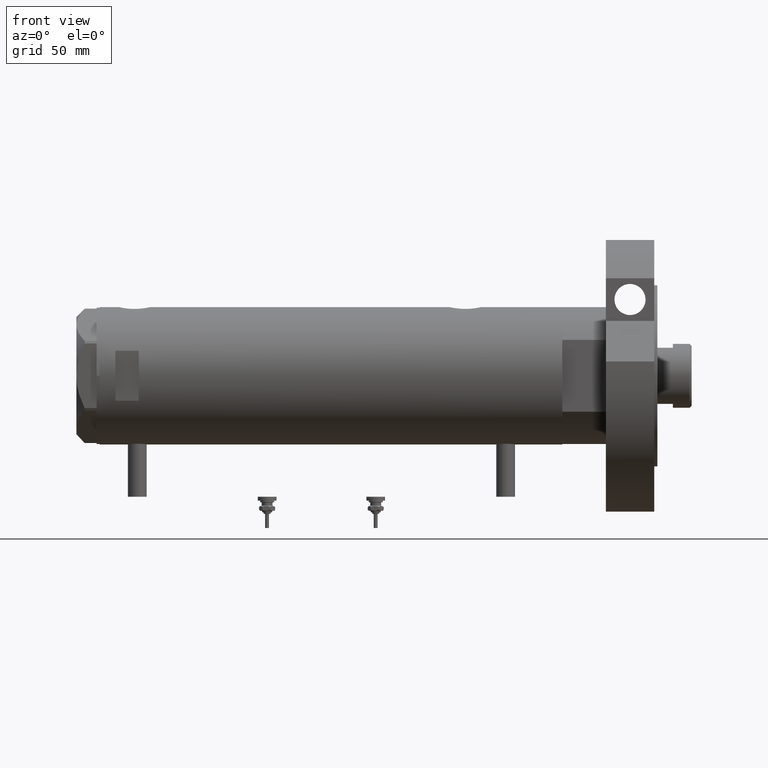
[diagram: clean part render]
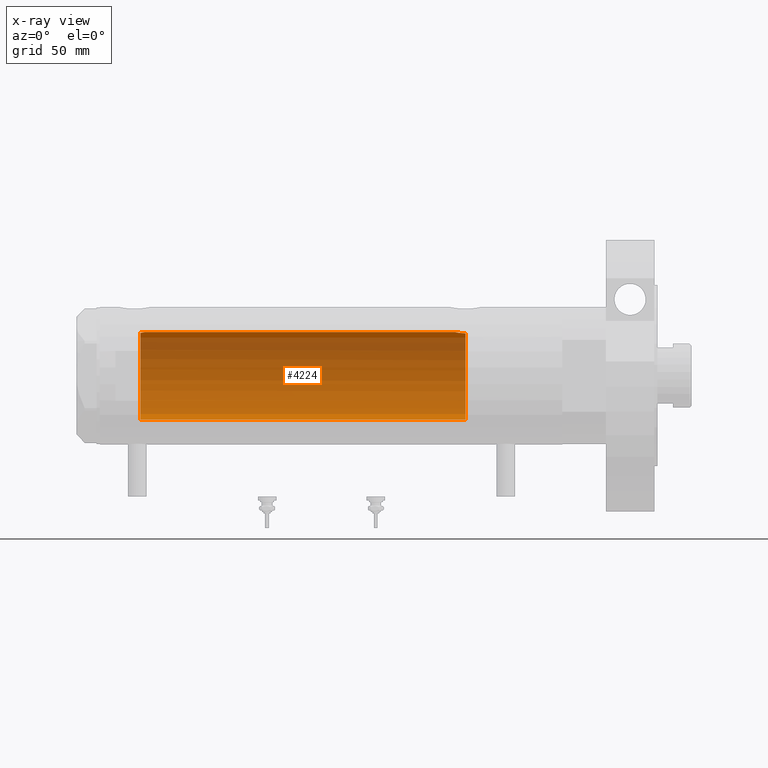
[diagram: x-ray — body ghosted, one internal face saturated and labeled with its STEP entity id]
A machine part, front view, then the same camera in x-ray: the body is ghosted and one INTERNAL B-rep face — a face not visible from any outside direction — is saturated and labeled: STEP entity #4224.
In plain terms, the highlighted cylindrical surface (partial cylindrical patch) has radius 28 mm, axis along (1, 0, -0).
Its self-contained STEP definition (entity closure, byte-faithful):
#104 = VECTOR ( 'NONE', #2927, 1000.000000000000000 ) ;
#132 = CARTESIAN_POINT ( 'NONE',  ( 27.77752716845532532, 3.554080867558345957, 120.3370280902186238 ) ) ;
#235 = CARTESIAN_POINT ( 'NONE',  ( 27.46622653369042766, 5.441176343402222670, 122.2000000000000028 ) ) ;
#283 = EDGE_LOOP ( 'NONE', ( #3239, #3616, #5646, #6111, #7348, #5800 ) ) ;
#290 = CARTESIAN_POINT ( 'NONE',  ( 27.28989504668421162, 6.268149480003695651, -84.05093353430703473 ) ) ;
#333 = CARTESIAN_POINT ( 'NONE',  ( 27.47751794615730248, 5.385218554237045652, -82.31285718566402920 ) ) ;
#474 = EDGE_CURVE ( 'NONE', #5789, #4495, #2469, .T. ) ;
#531 = CARTESIAN_POINT ( 'NONE',  ( 27.93969014165222120, 1.855286977351521038, 119.5812411240566462 ) ) ;
#572 = CARTESIAN_POINT ( 'NONE',  ( 28.00000000000000000, 3.429011037612589276E-15, 148.1999999999999886 ) ) ;
#714 = EDGE_CURVE ( 'NONE', #3161, #4495, #6268, .T. ) ;
#948 = CARTESIAN_POINT ( 'NONE',  ( 27.94984428957576483, 1.729919005741095805, -79.73624844305086867 ) ) ;
#971 = CARTESIAN_POINT ( 'NONE',  ( 0.000000000000000000, 0.000000000000000000, 148.1999999999999886 ) ) ;
#1055 = CARTESIAN_POINT ( 'NONE',  ( 27.46622653369042766, 5.441176343402222670, 122.2000000000000028 ) ) ;
#1250 = DIRECTION ( 'NONE',  ( 0.000000000000000000, 0.000000000000000000, -1.000000000000000000 ) ) ;
#1442 = CARTESIAN_POINT ( 'NONE',  ( 27.50226589723265747, 5.257822516958271741, -82.13779315141979964 ) ) ;
#1602 = CARTESIAN_POINT ( 'NONE',  ( 27.98989376185446432, 0.8673308354119230179, -79.56259295538819742 ) ) ;
#1648 = LINE ( 'NONE', #5150, #2888 ) ;
#2084 = CARTESIAN_POINT ( 'NONE',  ( 27.21712162367727927, 6.574850051620751756, -85.76016190408793705 ) ) ;
#2117 = CARTESIAN_POINT ( 'NONE',  ( 27.92057377942992957, 2.145335874642060769, -79.86449057456586331 ) ) ;
#2383 = VERTEX_POINT ( 'NONE', #2713 ) ;
#2399 = DIRECTION ( 'NONE',  ( 1.000000000000000000, 0.000000000000000000, 0.000000000000000000 ) ) ;
#2411 = CARTESIAN_POINT ( 'NONE',  ( 27.92131942247210219, 2.112374604004422007, 119.6625997420270977 ) ) ;
#2469 = B_SPLINE_CURVE_WITH_KNOTS ( 'NONE', 3,
 ( #4372, #5629, #1602, #948, #2117, #2725, #4447, #7276, #2766, #6692, #6119, #5056, #3221, #1442, #333, #7391, #3186, #290, #2606, #3264, #4984, #2084, #4411, #5593 ),
 .UNSPECIFIED., .F., .F.,
 ( 4, 2, 2, 2, 2, 2, 2, 2, 2, 2, 2, 4 ),
 ( 0.02064447638625020037, 0.02194711032043803953, 0.02324974425462587868, 0.02390106122171980693, 0.02455237818881373518, 0.02585501212300159168, 0.02650632909009551647, 0.02715764605718944472, 0.02846027999137729775, 0.02976291392556515425, 0.03041423089265907903, 0.03106554785975300728 ),
 .UNSPECIFIED. ) ;
#2606 = CARTESIAN_POINT ( 'NONE',  ( 27.26132124301008730, 6.389601967157238604, -84.46983701249828869 ) ) ;
#2702 = DIRECTION ( 'NONE',  ( -0.000000000000000000, -0.000000000000000000, -1.000000000000000000 ) ) ;
#2713 = CARTESIAN_POINT ( 'NONE',  ( -28.00000000000000000, 0.000000000000000000, 122.2000000000000028 ) ) ;
#2725 = CARTESIAN_POINT ( 'NONE',  ( 27.86588799758911250, 2.744542339393451158, -80.11578757899563641 ) ) ;
#2766 = CARTESIAN_POINT ( 'NONE',  ( 27.77951318121830226, 3.511620812961476545, -80.53115835401439426 ) ) ;
#2888 = VECTOR ( 'NONE', #2702, 1000.000000000000000 ) ;
#2927 = DIRECTION ( 'NONE',  ( -0.000000000000000000, -0.000000000000000000, -1.000000000000000000 ) ) ;
#3089 = CARTESIAN_POINT ( 'NONE',  ( 27.59012538417911031, 4.776664836238034617, 121.3667529856984544 ) ) ;
#3149 = CARTESIAN_POINT ( 'NONE',  ( 28.00000000000000000, 0.000000000000000000, 119.3200000000000074 ) ) ;
#3161 = VERTEX_POINT ( 'NONE', #7099 ) ;
#3186 = CARTESIAN_POINT ( 'NONE',  ( 27.36295003163000672, 5.941130795499228512, -83.23794896005176724 ) ) ;
#3213 = AXIS2_PLACEMENT_3D ( 'NONE', #4217, #1250, #6467 ) ;
#3221 = CARTESIAN_POINT ( 'NONE',  ( 27.55311958554909069, 4.984468698502469763, -81.79897075987406652 ) ) ;
#3239 = ORIENTED_EDGE ( 'NONE', *, *, #5264, .F. ) ;
#3264 = CARTESIAN_POINT ( 'NONE',  ( 27.23306259439847921, 6.508606919525676382, -85.10931986330979271 ) ) ;
#3284 = DIRECTION ( 'NONE',  ( -0.000000000000000000, -0.000000000000000000, -1.000000000000000000 ) ) ;
#3379 = CARTESIAN_POINT ( 'NONE',  ( 27.49602064413224056, 5.290780227724648732, 121.9788292468204673 ) ) ;
#3533 = LINE ( 'NONE', #572, #104 ) ;
#3616 = ORIENTED_EDGE ( 'NONE', *, *, #5534, .F. ) ;
#4217 = CARTESIAN_POINT ( 'NONE',  ( 0.000000000000000000, 0.000000000000000000, -86.20000000000000284 ) ) ;
#4224 = ADVANCED_FACE ( 'NONE', ( #7338 ), #6187, .F. ) ;
#4257 = AXIS2_PLACEMENT_3D ( 'NONE', #4692, #6980, #2399 ) ;
#4280 = CARTESIAN_POINT ( 'NONE',  ( 27.98435453724556510, 1.072101232728050801, 119.3856609737169094 ) ) ;
#4372 = CARTESIAN_POINT ( 'NONE',  ( 28.00000000000000000, 8.058211040172173087E-16, -79.52000000000001023 ) ) ;
#4411 = CARTESIAN_POINT ( 'NONE',  ( 27.21525044627864176, 6.582564457995945695, -85.98128103916469911 ) ) ;
#4447 = CARTESIAN_POINT ( 'NONE',  ( 27.84585502960274539, 2.940342086136629618, -80.20946914370765057 ) ) ;
#4495 = VERTEX_POINT ( 'NONE', #6559 ) ;
#4548 = VERTEX_POINT ( 'NONE', #235 ) ;
#4600 = CARTESIAN_POINT ( 'NONE',  ( 27.62184089756353345, 4.590621453796798868, 121.1784729639471863 ) ) ;
#4692 = CARTESIAN_POINT ( 'NONE',  ( 0.000000000000000000, 0.000000000000000000, 122.2000000000000028 ) ) ;
#4744 = CARTESIAN_POINT ( 'NONE',  ( 28.00000000000000000, 0.5407212781083797770, 119.3200000000000216 ) ) ;
#4749 = EDGE_CURVE ( 'NONE', #2383, #3161, #1648, .T. ) ;
#4918 = CARTESIAN_POINT ( 'NONE',  ( 28.00000000000000000, 8.058211040172173087E-16, -79.52000000000001023 ) ) ;
#4984 = CARTESIAN_POINT ( 'NONE',  ( 27.22604017942137133, 6.537820648187913086, -85.32472952793342813 ) ) ;
#5056 = CARTESIAN_POINT ( 'NONE',  ( 27.57921322802619457, 4.838471943606464265, -81.63541026849053139 ) ) ;
#5150 = CARTESIAN_POINT ( 'NONE',  ( -28.00000000000000000, 0.000000000000000000, 148.1999999999999886 ) ) ;
#5264 = EDGE_CURVE ( 'NONE', #6676, #5789, #3533, .T. ) ;
#5534 = EDGE_CURVE ( 'NONE', #4548, #6676, #7378, .T. ) ;
#5593 = CARTESIAN_POINT ( 'NONE',  ( 27.21605408577812568, 6.579240077698946365, -86.20000000000000284 ) ) ;
#5615 = DIRECTION ( 'NONE',  ( -1.000000000000000000, 0.000000000000000000, 0.000000000000000000 ) ) ;
#5629 = CARTESIAN_POINT ( 'NONE',  ( 28.00000000000000000, 0.4344375524774752306, -79.51999999999999602 ) ) ;
#5646 = ORIENTED_EDGE ( 'NONE', *, *, #6085, .T. ) ;
#5703 = CARTESIAN_POINT ( 'NONE',  ( 27.52730847012277948, 5.126288527110434146, 121.7662339946191281 ) ) ;
#5789 = VERTEX_POINT ( 'NONE', #4918 ) ;
#5800 = ORIENTED_EDGE ( 'NONE', *, *, #474, .F. ) ;
#5990 = CARTESIAN_POINT ( 'NONE',  ( 27.71586615897684069, 3.998795151939223746, 120.6476739562574778 ) ) ;
#6085 = EDGE_CURVE ( 'NONE', #4548, #2383, #6931, .T. ) ;
#6111 = ORIENTED_EDGE ( 'NONE', *, *, #4749, .T. ) ;
#6119 = CARTESIAN_POINT ( 'NONE',  ( 27.65669575048418238, 4.382057994727794004, -81.17233761202035680 ) ) ;
#6187 = CYLINDRICAL_SURFACE ( 'NONE', #7272, 28.00000000000000000 ) ;
#6268 = CIRCLE ( 'NONE', #3213, 28.00000000000000000 ) ;
#6467 = DIRECTION ( 'NONE',  ( -1.000000000000000000, 0.000000000000000000, 0.000000000000000000 ) ) ;
#6488 = CARTESIAN_POINT ( 'NONE',  ( 28.00000000000000000, 0.000000000000000000, 119.3200000000000074 ) ) ;
#6559 = CARTESIAN_POINT ( 'NONE',  ( 27.21605408577812568, 6.579240077698946365, -86.20000000000000284 ) ) ;
#6676 = VERTEX_POINT ( 'NONE', #3149 ) ;
#6692 = CARTESIAN_POINT ( 'NONE',  ( 27.70785054350542609, 4.050475470458774652, -80.89631279652928697 ) ) ;
#6927 = CARTESIAN_POINT ( 'NONE',  ( 27.85549123290575935, 2.850830541327390666, 119.9637046868290611 ) ) ;
#6931 = CIRCLE ( 'NONE', #4257, 28.00000000000000000 ) ;
#6980 = DIRECTION ( 'NONE',  ( 0.000000000000000000, 0.000000000000000000, 1.000000000000000000 ) ) ;
#7099 = CARTESIAN_POINT ( 'NONE',  ( -28.00000000000000000, 0.000000000000000000, -86.20000000000000284 ) ) ;
#7272 = AXIS2_PLACEMENT_3D ( 'NONE', #971, #3284, #5615 ) ;
#7276 = CARTESIAN_POINT ( 'NONE',  ( 27.80267334785859390, 3.323944738624906581, -80.41709962017577595 ) ) ;
#7338 = FACE_OUTER_BOUND ( 'NONE', #283, .T. ) ;
#7348 = ORIENTED_EDGE ( 'NONE', *, *, #714, .T. ) ;
#7378 = B_SPLINE_CURVE_WITH_KNOTS ( 'NONE', 3,
 ( #1055, #3379, #5703, #3089, #4600, #5990, #132, #6927, #7511, #2411, #531, #4280, #4744, #6488 ),
 .UNSPECIFIED., .F., .F.,
 ( 4, 2, 2, 2, 2, 2, 4 ),
 ( 0.03488855882532452407, 0.03568791961119571754, 0.03648728039706691101, 0.03808600196880932570, 0.03888536275468051917, 0.03968472354055171958, 0.04128344511229410652 ),
 .UNSPECIFIED. ) ;
#7391 = CARTESIAN_POINT ( 'NONE',  ( 27.40633791352276205, 5.740289853568793177, -82.85469713442370221 ) ) ;
#7511 = CARTESIAN_POINT ( 'NONE',  ( 27.87926027245440963, 2.609415915507857342, 119.8536592036424508 ) ) ;